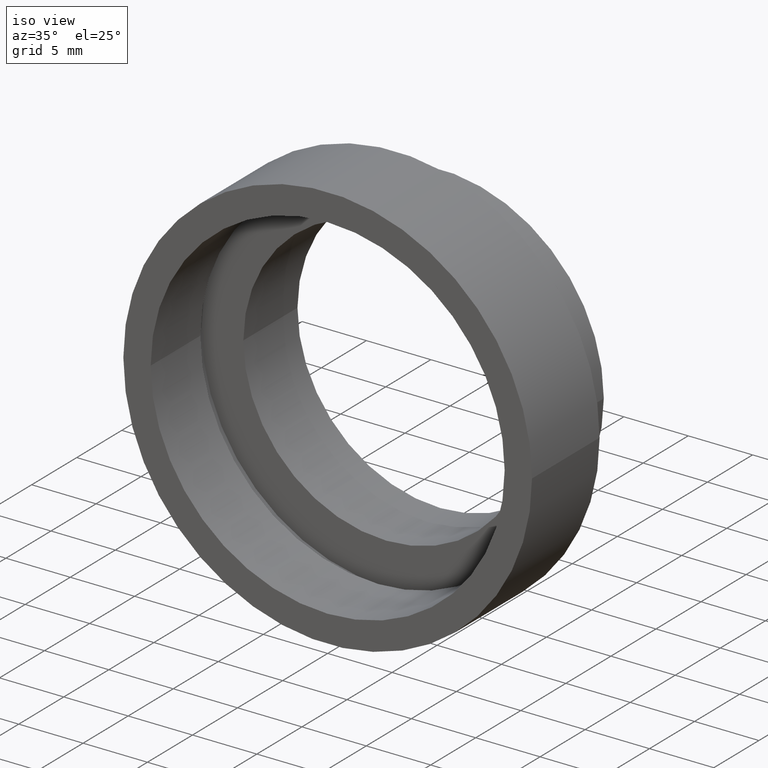
[diagram: clean part render]
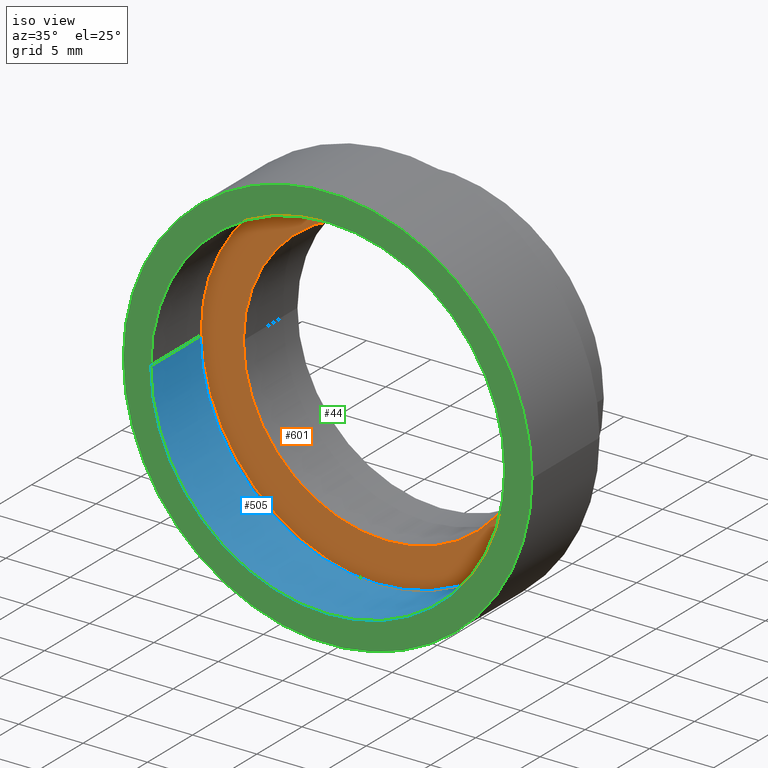
[diagram: same view with three faces highlighted in distinct colors, each labeled with its STEP entity id]
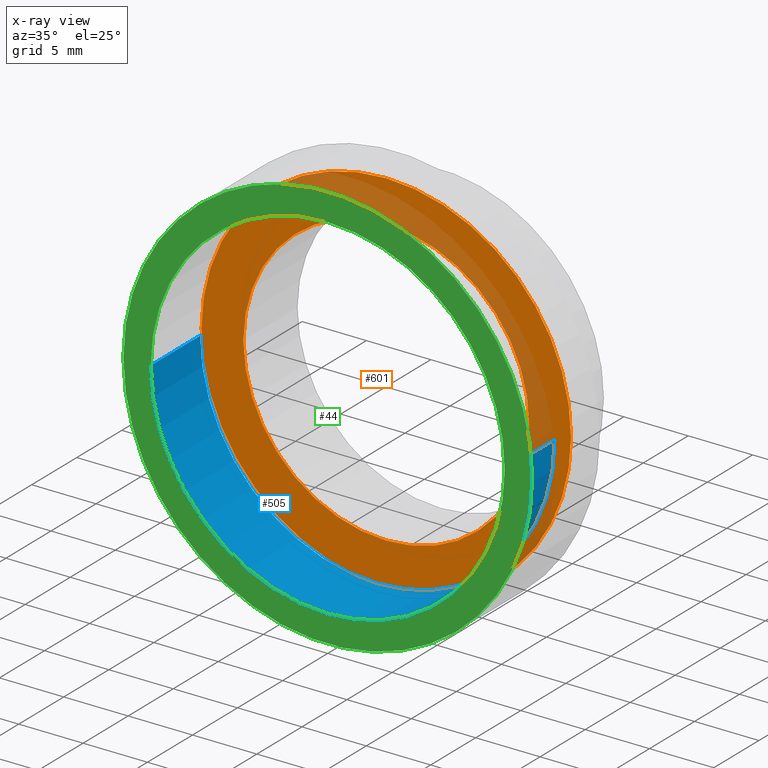
[diagram: x-ray of the same camera — body ghosted, the three highlighted faces saturated]
A machine part, iso view with three faces highlighted in distinct colors.
The next image is the same camera in x-ray (body ghosted, the three faces saturated) — at least one of them is partly hidden behind the body in this view.
Their STEP definitions:

[orange] entity #601 — the highlighted planar face has unit normal (-0, 1, 0).
#11 = DIRECTION ( 'NONE',  ( -1.000000000000000000, -1.208866533781747400E-016, 0.0000000000000000000 ) ) ;
#18 = AXIS2_PLACEMENT_3D ( 'NONE', #122, #250, #611 ) ;
#22 = DIRECTION ( 'NONE',  ( -1.000000000000000000, -1.224646799147351000E-016, 0.0000000000000000000 ) ) ;
#29 = VERTEX_POINT ( 'NONE', #560 ) ;
#45 = CARTESIAN_POINT ( 'NONE',  ( 11.10000000000000100, 6.499999999999999100, 1.359357947053562400E-015 ) ) ;
#101 = AXIS2_PLACEMENT_3D ( 'NONE', #307, #457, #11 ) ;
#110 = EDGE_LOOP ( 'NONE', ( #263, #294 ) ) ;
#115 = CIRCLE ( 'NONE', #101, 14.34999999999999800 ) ;
#118 = FACE_BOUND ( 'NONE', #110, .T. ) ;
#122 = CARTESIAN_POINT ( 'NONE',  ( 1.271920398992858000E-015, 6.499999999999997300, 0.0000000000000000000 ) ) ;
#150 = VERTEX_POINT ( 'NONE', #480 ) ;
#160 = DIRECTION ( 'NONE',  ( -1.224646799147351000E-016, 1.000000000000000000, -0.0000000000000000000 ) ) ;
#172 = DIRECTION ( 'NONE',  ( -1.224646799147351000E-016, 1.000000000000000000, 0.0000000000000000000 ) ) ;
#178 = DIRECTION ( 'NONE',  ( -1.000000000000000000, -1.208866533781747400E-016, 0.0000000000000000000 ) ) ;
#207 = ORIENTED_EDGE ( 'NONE', *, *, #215, .F. ) ;
#210 = CIRCLE ( 'NONE', #465, 11.10000000000000000 ) ;
#215 = EDGE_CURVE ( 'NONE', #486, #150, #538, .T. ) ;
#236 = DIRECTION ( 'NONE',  ( -1.000000000000000000, -1.562813942321447800E-016, 0.0000000000000000000 ) ) ;
#250 = DIRECTION ( 'NONE',  ( -1.224646799147351000E-016, 1.000000000000000000, -0.0000000000000000000 ) ) ;
#252 = FACE_OUTER_BOUND ( 'NONE', #579, .T. ) ;
#263 = ORIENTED_EDGE ( 'NONE', *, *, #466, .T. ) ;
#269 = EDGE_CURVE ( 'NONE', #150, #486, #115, .T. ) ;
#294 = ORIENTED_EDGE ( 'NONE', *, *, #409, .T. ) ;
#307 = CARTESIAN_POINT ( 'NONE',  ( 1.271920398992858000E-015, 6.499999999999997300, 0.0000000000000000000 ) ) ;
#322 = VERTEX_POINT ( 'NONE', #45 ) ;
#323 = ORIENTED_EDGE ( 'NONE', *, *, #269, .F. ) ;
#337 = DIRECTION ( 'NONE',  ( -1.224646799147351000E-016, 1.000000000000000000, -0.0000000000000000000 ) ) ;
#347 = CIRCLE ( 'NONE', #18, 11.10000000000000000 ) ;
#362 = CARTESIAN_POINT ( 'NONE',  ( 1.271920398992858000E-015, 6.499999999999997300, 0.0000000000000000000 ) ) ;
#389 = CARTESIAN_POINT ( 'NONE',  ( 1.271920398992858000E-015, 6.499999999999997300, 0.0000000000000000000 ) ) ;
#395 = PLANE ( 'NONE',  #437 ) ;
#407 = CARTESIAN_POINT ( 'NONE',  ( 11.10000000000000100, 6.499999999999999100, 0.0000000000000000000 ) ) ;
#409 = EDGE_CURVE ( 'NONE', #322, #29, #347, .T. ) ;
#437 = AXIS2_PLACEMENT_3D ( 'NONE', #407, #172, #22 ) ;
#457 = DIRECTION ( 'NONE',  ( -1.224646799147351000E-016, 1.000000000000000000, -0.0000000000000000000 ) ) ;
#465 = AXIS2_PLACEMENT_3D ( 'NONE', #389, #160, #236 ) ;
#466 = EDGE_CURVE ( 'NONE', #29, #322, #210, .T. ) ;
#480 = CARTESIAN_POINT ( 'NONE',  ( -14.34999999999999600, 6.499999999999995600, 0.0000000000000000000 ) ) ;
#486 = VERTEX_POINT ( 'NONE', #609 ) ;
#488 = AXIS2_PLACEMENT_3D ( 'NONE', #362, #337, #178 ) ;
#538 = CIRCLE ( 'NONE', #488, 14.34999999999999800 ) ;
#560 = CARTESIAN_POINT ( 'NONE',  ( -11.09999999999999800, 6.499999999999995600, 0.0000000000000000000 ) ) ;
#579 = EDGE_LOOP ( 'NONE', ( #323, #207 ) ) ;
#601 = ADVANCED_FACE ( 'NONE', ( #252, #118 ), #395, .F. ) ;
#609 = CARTESIAN_POINT ( 'NONE',  ( 14.35000000000000000, 6.499999999999999100, 1.757368156776451600E-015 ) ) ;
#611 = DIRECTION ( 'NONE',  ( -1.000000000000000000, -1.562813942321447800E-016, 0.0000000000000000000 ) ) ;

[blue] entity #505 — the highlighted cylindrical surface (partial cylindrical patch) has radius 13.75 mm, axis along (-0, 1, -0).
#3 = ORIENTED_EDGE ( 'NONE', *, *, #251, .F. ) ;
#23 = AXIS2_PLACEMENT_3D ( 'NONE', #136, #145, #94 ) ;
#28 = CIRCLE ( 'NONE', #23, 13.75000000000000200 ) ;
#57 = EDGE_CURVE ( 'NONE', #304, #71, #415, .T. ) ;
#63 = ORIENTED_EDGE ( 'NONE', *, *, #211, .F. ) ;
#65 = LINE ( 'NONE', #195, #581 ) ;
#69 = DIRECTION ( 'NONE',  ( -1.000000000000000000, 0.0000000000000000000, 0.0000000000000000000 ) ) ;
#71 = VERTEX_POINT ( 'NONE', #274 ) ;
#91 = DIRECTION ( 'NONE',  ( -1.224646799147351000E-016, 1.000000000000000000, -0.0000000000000000000 ) ) ;
#94 = DIRECTION ( 'NONE',  ( -1.000000000000000000, -1.224646799147351000E-016, 0.0000000000000000000 ) ) ;
#100 = ORIENTED_EDGE ( 'NONE', *, *, #153, .T. ) ;
#107 = CARTESIAN_POINT ( 'NONE',  ( 13.75000000000000400, 1.683889348827607900E-015, 1.683889348827611000E-015 ) ) ;
#136 = CARTESIAN_POINT ( 'NONE',  ( 2.067940818438636100E-015, 0.0000000000000000000, 0.0000000000000000000 ) ) ;
#142 = CARTESIAN_POINT ( 'NONE',  ( 1.394385078907593200E-015, 5.499999999999996400, 0.0000000000000000000 ) ) ;
#145 = DIRECTION ( 'NONE',  ( -1.224646799147351000E-016, 1.000000000000000000, -0.0000000000000000000 ) ) ;
#151 = DIRECTION ( 'NONE',  ( -1.000000000000000000, -1.261617073437677800E-016, 0.0000000000000000000 ) ) ;
#153 = EDGE_CURVE ( 'NONE', #71, #205, #285, .T. ) ;
#175 = EDGE_LOOP ( 'NONE', ( #63, #314, #100, #3 ) ) ;
#190 = DIRECTION ( 'NONE',  ( -1.224646799147351000E-016, 1.000000000000000000, -0.0000000000000000000 ) ) ;
#194 = FACE_OUTER_BOUND ( 'NONE', #175, .T. ) ;
#195 = CARTESIAN_POINT ( 'NONE',  ( -13.75000000000000200, 16.88601823708207700, 0.0000000000000000000 ) ) ;
#205 = VERTEX_POINT ( 'NONE', #342 ) ;
#211 = EDGE_CURVE ( 'NONE', #304, #492, #28, .T. ) ;
#251 = EDGE_CURVE ( 'NONE', #492, #205, #65, .T. ) ;
#264 = CYLINDRICAL_SURFACE ( 'NONE', #504, 13.75000000000000200 ) ;
#274 = CARTESIAN_POINT ( 'NONE',  ( 13.75000000000000400, 5.499999999999998200, 1.683889348827611000E-015 ) ) ;
#285 = CIRCLE ( 'NONE', #309, 13.75000000000000200 ) ;
#304 = VERTEX_POINT ( 'NONE', #107 ) ;
#309 = AXIS2_PLACEMENT_3D ( 'NONE', #142, #91, #151 ) ;
#314 = ORIENTED_EDGE ( 'NONE', *, *, #57, .T. ) ;
#342 = CARTESIAN_POINT ( 'NONE',  ( -13.75000000000000000, 5.499999999999994700, 0.0000000000000000000 ) ) ;
#415 = LINE ( 'NONE', #431, #571 ) ;
#428 = CARTESIAN_POINT ( 'NONE',  ( 0.0000000000000000000, 16.88601823708207700, 0.0000000000000000000 ) ) ;
#431 = CARTESIAN_POINT ( 'NONE',  ( 13.75000000000000200, 16.88601823708207700, 1.683889348827611000E-015 ) ) ;
#481 = DIRECTION ( 'NONE',  ( -1.224646799147351000E-016, 1.000000000000000000, -0.0000000000000000000 ) ) ;
#492 = VERTEX_POINT ( 'NONE', #527 ) ;
#504 = AXIS2_PLACEMENT_3D ( 'NONE', #428, #481, #69 ) ;
#505 = ADVANCED_FACE ( 'NONE', ( #194 ), #264, .F. ) ;
#527 = CARTESIAN_POINT ( 'NONE',  ( -13.75000000000000000, -1.683889348827607900E-015, 0.0000000000000000000 ) ) ;
#530 = DIRECTION ( 'NONE',  ( -1.224646799147351000E-016, 1.000000000000000000, -0.0000000000000000000 ) ) ;
#571 = VECTOR ( 'NONE', #190, 1000.000000000000000 ) ;
#581 = VECTOR ( 'NONE', #530, 1000.000000000000000 ) ;

[green] entity #44 — the highlighted planar face has unit normal (-0, 1, 0).
#23 = AXIS2_PLACEMENT_3D ( 'NONE', #136, #145, #94 ) ;
#28 = CIRCLE ( 'NONE', #23, 13.75000000000000200 ) ;
#39 = ORIENTED_EDGE ( 'NONE', *, *, #211, .T. ) ;
#40 = DIRECTION ( 'NONE',  ( -1.000000000000000000, -1.224646799147350700E-016, 0.0000000000000000000 ) ) ;
#44 = ADVANCED_FACE ( 'NONE', ( #329, #216 ), #435, .F. ) ;
#54 = CARTESIAN_POINT ( 'NONE',  ( 15.87500000000000000, -3.035621465847962700E-016, 0.0000000000000000000 ) ) ;
#74 = DIRECTION ( 'NONE',  ( -1.224646799147351000E-016, 1.000000000000000000, -0.0000000000000000000 ) ) ;
#84 = DIRECTION ( 'NONE',  ( -1.000000000000000000, -1.224646799147351000E-016, 0.0000000000000000000 ) ) ;
#94 = DIRECTION ( 'NONE',  ( -1.000000000000000000, -1.224646799147351000E-016, 0.0000000000000000000 ) ) ;
#97 = CIRCLE ( 'NONE', #156, 15.87499999999999600 ) ;
#102 = DIRECTION ( 'NONE',  ( -1.000000000000000000, -1.224646799147350700E-016, 0.0000000000000000000 ) ) ;
#107 = CARTESIAN_POINT ( 'NONE',  ( 13.75000000000000400, 1.683889348827607900E-015, 1.683889348827611000E-015 ) ) ;
#136 = CARTESIAN_POINT ( 'NONE',  ( 2.067940818438636100E-015, 0.0000000000000000000, 0.0000000000000000000 ) ) ;
#145 = DIRECTION ( 'NONE',  ( -1.224646799147351000E-016, 1.000000000000000000, -0.0000000000000000000 ) ) ;
#156 = AXIS2_PLACEMENT_3D ( 'NONE', #278, #334, #102 ) ;
#157 = EDGE_LOOP ( 'NONE', ( #454, #39 ) ) ;
#164 = VERTEX_POINT ( 'NONE', #445 ) ;
#166 = DIRECTION ( 'NONE',  ( -1.000000000000000000, -1.224646799147351000E-016, 0.0000000000000000000 ) ) ;
#169 = AXIS2_PLACEMENT_3D ( 'NONE', #170, #328, #166 ) ;
#170 = CARTESIAN_POINT ( 'NONE',  ( 2.067940818438636100E-015, 0.0000000000000000000, 0.0000000000000000000 ) ) ;
#202 = CARTESIAN_POINT ( 'NONE',  ( 2.067940818438636500E-015, -3.469446951953614200E-015, 0.0000000000000000000 ) ) ;
#211 = EDGE_CURVE ( 'NONE', #304, #492, #28, .T. ) ;
#216 = FACE_BOUND ( 'NONE', #157, .T. ) ;
#278 = CARTESIAN_POINT ( 'NONE',  ( 2.067940818438636500E-015, -3.469446951953614200E-015, 0.0000000000000000000 ) ) ;
#288 = EDGE_LOOP ( 'NONE', ( #449, #350 ) ) ;
#304 = VERTEX_POINT ( 'NONE', #107 ) ;
#328 = DIRECTION ( 'NONE',  ( -1.224646799147351000E-016, 1.000000000000000000, -0.0000000000000000000 ) ) ;
#329 = FACE_OUTER_BOUND ( 'NONE', #288, .T. ) ;
#334 = DIRECTION ( 'NONE',  ( -1.224646799147351000E-016, 1.000000000000000000, -0.0000000000000000000 ) ) ;
#350 = ORIENTED_EDGE ( 'NONE', *, *, #438, .F. ) ;
#420 = CARTESIAN_POINT ( 'NONE',  ( -15.87499999999999300, -5.413573745600033100E-015, 0.0000000000000000000 ) ) ;
#425 = VERTEX_POINT ( 'NONE', #420 ) ;
#434 = CIRCLE ( 'NONE', #169, 13.75000000000000200 ) ;
#435 = PLANE ( 'NONE',  #574 ) ;
#438 = EDGE_CURVE ( 'NONE', #164, #425, #97, .T. ) ;
#445 = CARTESIAN_POINT ( 'NONE',  ( 15.87500000000000000, -1.525320158307194900E-015, 1.944126793646423200E-015 ) ) ;
#449 = ORIENTED_EDGE ( 'NONE', *, *, #514, .F. ) ;
#454 = ORIENTED_EDGE ( 'NONE', *, *, #478, .T. ) ;
#478 = EDGE_CURVE ( 'NONE', #492, #304, #434, .T. ) ;
#492 = VERTEX_POINT ( 'NONE', #527 ) ;
#508 = CIRCLE ( 'NONE', #547, 15.87499999999999600 ) ;
#514 = EDGE_CURVE ( 'NONE', #425, #164, #508, .T. ) ;
#527 = CARTESIAN_POINT ( 'NONE',  ( -13.75000000000000000, -1.683889348827607900E-015, 0.0000000000000000000 ) ) ;
#547 = AXIS2_PLACEMENT_3D ( 'NONE', #202, #74, #40 ) ;
#574 = AXIS2_PLACEMENT_3D ( 'NONE', #54, #589, #84 ) ;
#589 = DIRECTION ( 'NONE',  ( -1.224646799147351000E-016, 1.000000000000000000, 0.0000000000000000000 ) ) ;